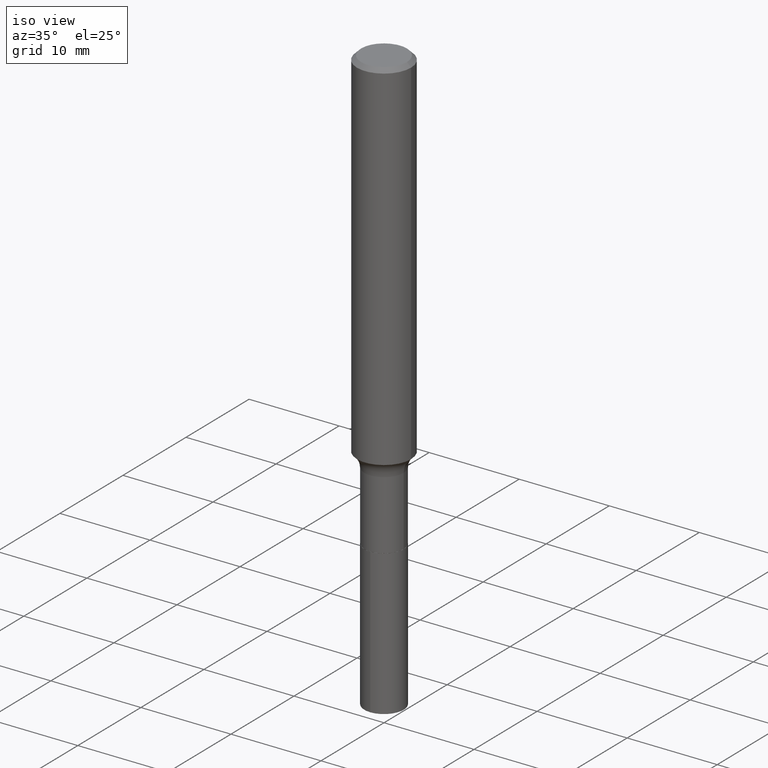
[diagram: clean part render]
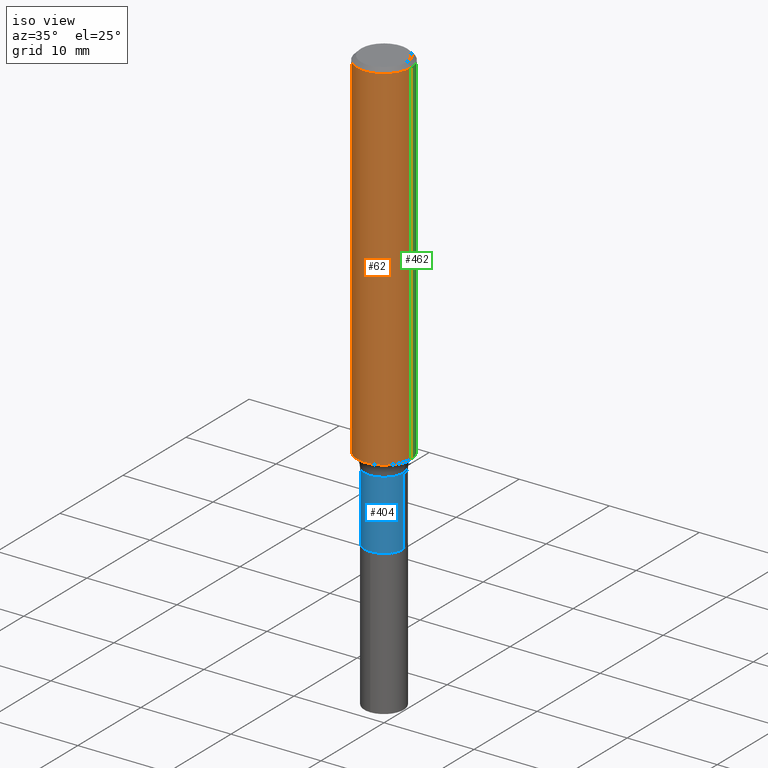
[diagram: same view with three faces highlighted in distinct colors, each labeled with its STEP entity id]
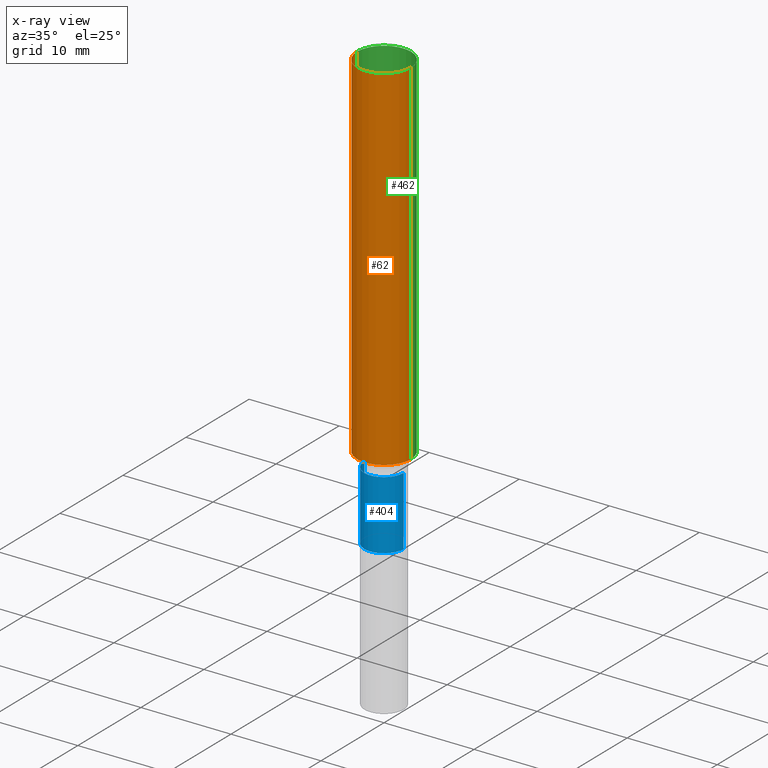
[diagram: x-ray of the same camera — body ghosted, the three highlighted faces saturated]
A machine part, iso view with three faces highlighted in distinct colors.
The next image is the same camera in x-ray (body ghosted, the three faces saturated) — at least one of them is partly hidden behind the body in this view.
Their STEP definitions:

[orange] entity #62 — the highlighted cylindrical surface (edge-blend (fillet) strip) has radius 2.9997 mm, axis along (-0, 0, 1).
#2 = DIRECTION ( 'NONE',  ( 1.000000000000000000, -6.982962677686266711E-15, 0.000000000000000000 ) ) ;
#19 = EDGE_CURVE ( 'NONE', #136, #291, #482, .T. ) ;
#32 = CYLINDRICAL_SURFACE ( 'NONE', #325, 0.1181000000000000799 ) ;
#38 = CARTESIAN_POINT ( 'NONE',  ( 4.332147990156996744E-31, -6.185159191760670395E-17, -0.01771500000000010913 ) ) ;
#40 = DIRECTION ( 'NONE',  ( -2.445468806185136597E-29, 3.491481338843145583E-15, 1.000000000000000000 ) ) ;
#44 = CARTESIAN_POINT ( 'NONE',  ( -0.1181000000000000799, 8.391509709326788873E-16, -5.809262341591047988E-30 ) ) ;
#62 = ADVANCED_FACE ( 'NONE', ( #373 ), #32, .T. ) ;
#64 = VERTEX_POINT ( 'NONE', #415 ) ;
#65 = ORIENTED_EDGE ( 'NONE', *, *, #152, .F. ) ;
#124 = CARTESIAN_POINT ( 'NONE',  ( 0.1181000000000002048, -6.287454960939812530E-15, -1.564598672755638020 ) ) ;
#136 = VERTEX_POINT ( 'NONE', #234 ) ;
#137 = CIRCLE ( 'NONE', #413, 0.1180999999999999966 ) ;
#141 = ORIENTED_EDGE ( 'NONE', *, *, #221, .F. ) ;
#152 = EDGE_CURVE ( 'NONE', #64, #251, #137, .T. ) ;
#153 = LINE ( 'NONE', #408, #177 ) ;
#172 = CARTESIAN_POINT ( 'NONE',  ( 0.1180999999999999966, -8.865394841523547570E-16, -0.01771500000000010913 ) ) ;
#177 = VECTOR ( 'NONE', #299, 39.37007874015748143 ) ;
#201 = DIRECTION ( 'NONE',  ( -2.445468806185136877E-29, 3.491481338843145188E-15, 1.000000000000000000 ) ) ;
#221 = EDGE_CURVE ( 'NONE', #136, #64, #384, .T. ) ;
#234 = CARTESIAN_POINT ( 'NONE',  ( -0.1181000000000002048, -4.623616097772383704E-15, -1.564598672755638020 ) ) ;
#235 = DIRECTION ( 'NONE',  ( 1.000000000000000000, -6.982962677686266711E-15, 4.876176775795936353E-29 ) ) ;
#251 = VERTEX_POINT ( 'NONE', #172 ) ;
#260 = EDGE_LOOP ( 'NONE', ( #141, #435, #367, #65 ) ) ;
#291 = VERTEX_POINT ( 'NONE', #124 ) ;
#299 = DIRECTION ( 'NONE',  ( -2.445468806185136877E-29, 3.491481338843145188E-15, 1.000000000000000000 ) ) ;
#325 = AXIS2_PLACEMENT_3D ( 'NONE', #379, #40, #235 ) ;
#329 = DIRECTION ( 'NONE',  ( 1.000000000000000000, -6.982962677686270655E-15, 0.000000000000000000 ) ) ;
#335 = DIRECTION ( 'NONE',  ( -2.445468806185136597E-29, 3.491481338843145583E-15, 1.000000000000000000 ) ) ;
#342 = DIRECTION ( 'NONE',  ( -2.445468806185136597E-29, 3.491481338843145583E-15, 1.000000000000000000 ) ) ;
#367 = ORIENTED_EDGE ( 'NONE', *, *, #420, .T. ) ;
#368 = VECTOR ( 'NONE', #201, 39.37007874015748143 ) ;
#373 = FACE_OUTER_BOUND ( 'NONE', #260, .T. ) ;
#379 = CARTESIAN_POINT ( 'NONE',  ( 0.000000000000000000, 0.000000000000000000, 0.000000000000000000 ) ) ;
#384 = LINE ( 'NONE', #44, #368 ) ;
#403 = AXIS2_PLACEMENT_3D ( 'NONE', #487, #335, #329 ) ;
#408 = CARTESIAN_POINT ( 'NONE',  ( 0.1181000000000000799, -8.246878922347486570E-16, 5.758764772215004644E-30 ) ) ;
#413 = AXIS2_PLACEMENT_3D ( 'NONE', #38, #342, #2 ) ;
#415 = CARTESIAN_POINT ( 'NONE',  ( -0.1180999999999999966, -1.923158359378655458E-15, -0.01771500000000010913 ) ) ;
#420 = EDGE_CURVE ( 'NONE', #291, #251, #153, .T. ) ;
#435 = ORIENTED_EDGE ( 'NONE', *, *, #19, .T. ) ;
#482 = CIRCLE ( 'NONE', #403, 0.1181000000000001632 ) ;
#487 = CARTESIAN_POINT ( 'NONE',  ( 3.826177248422579453E-29, -5.462767068705062690E-15, -1.564598672755638020 ) ) ;

[blue] entity #404 — the highlighted cylindrical surface (edge-blend (fillet) strip) has radius 2.1831 mm, axis along (-0, 0, 1).
#11 = CARTESIAN_POINT ( 'NONE',  ( 0.08594999999999998475, -7.333856552240024427E-15, -1.928600000000000092 ) ) ;
#33 = FACE_OUTER_BOUND ( 'NONE', #266, .T. ) ;
#37 = AXIS2_PLACEMENT_3D ( 'NONE', #339, #224, #344 ) ;
#47 = EDGE_CURVE ( 'NONE', #173, #322, #481, .T. ) ;
#56 = VERTEX_POINT ( 'NONE', #225 ) ;
#76 = EDGE_CURVE ( 'NONE', #284, #56, #421, .T. ) ;
#82 = DIRECTION ( 'NONE',  ( -2.445468806185136877E-29, 3.491481338843145188E-15, 1.000000000000000000 ) ) ;
#96 = VECTOR ( 'NONE', #82, 39.37007874015748143 ) ;
#120 = VECTOR ( 'NONE', #142, 39.37007874015748143 ) ;
#142 = DIRECTION ( 'NONE',  ( -2.445468806185136877E-29, 3.491481338843145188E-15, 1.000000000000000000 ) ) ;
#154 = DIRECTION ( 'NONE',  ( 1.000000000000000000, -6.982962677686264344E-15, 0.000000000000000000 ) ) ;
#157 = CARTESIAN_POINT ( 'NONE',  ( -0.08594999999999998475, -5.597666061278133758E-15, -1.928600000000000092 ) ) ;
#162 = DIRECTION ( 'NONE',  ( -2.445468806185136597E-29, 3.491481338843145583E-15, 1.000000000000000000 ) ) ;
#163 = EDGE_CURVE ( 'NONE', #322, #56, #208, .T. ) ;
#173 = VERTEX_POINT ( 'NONE', #157 ) ;
#174 = EDGE_CURVE ( 'NONE', #173, #284, #249, .T. ) ;
#184 = AXIS2_PLACEMENT_3D ( 'NONE', #459, #347, #455 ) ;
#187 = CARTESIAN_POINT ( 'NONE',  ( -0.08594999999999997087, 6.107114813858059028E-16, -4.227824710074090189E-30 ) ) ;
#198 = CARTESIAN_POINT ( 'NONE',  ( 3.980489575827546304E-29, -5.683084175234986754E-15, -1.627699999999999703 ) ) ;
#208 = CIRCLE ( 'NONE', #467, 0.08594999999999995699 ) ;
#212 = ORIENTED_EDGE ( 'NONE', *, *, #47, .F. ) ;
#224 = DIRECTION ( 'NONE',  ( -2.445468806185136597E-29, 3.491481338843145583E-15, 1.000000000000000000 ) ) ;
#225 = CARTESIAN_POINT ( 'NONE',  ( 0.08594999999999995699, -6.283269817382120980E-15, -1.627699999999999703 ) ) ;
#233 = CYLINDRICAL_SURFACE ( 'NONE', #37, 0.08594999999999997087 ) ;
#249 = CIRCLE ( 'NONE', #184, 0.08594999999999998475 ) ;
#262 = ORIENTED_EDGE ( 'NONE', *, *, #163, .F. ) ;
#266 = EDGE_LOOP ( 'NONE', ( #212, #333, #285, #262 ) ) ;
#284 = VERTEX_POINT ( 'NONE', #11 ) ;
#285 = ORIENTED_EDGE ( 'NONE', *, *, #76, .T. ) ;
#322 = VERTEX_POINT ( 'NONE', #453 ) ;
#333 = ORIENTED_EDGE ( 'NONE', *, *, #174, .T. ) ;
#339 = CARTESIAN_POINT ( 'NONE',  ( 0.000000000000000000, 0.000000000000000000, 0.000000000000000000 ) ) ;
#344 = DIRECTION ( 'NONE',  ( 1.000000000000000000, -6.982962677686266711E-15, 4.876176775795936353E-29 ) ) ;
#347 = DIRECTION ( 'NONE',  ( -2.445468806185136597E-29, 3.491481338843145583E-15, 1.000000000000000000 ) ) ;
#404 = ADVANCED_FACE ( 'NONE', ( #33 ), #233, .T. ) ;
#421 = LINE ( 'NONE', #452, #96 ) ;
#452 = CARTESIAN_POINT ( 'NONE',  ( 0.08594999999999997087, -6.001856421471344234E-16, 4.191073938796605839E-30 ) ) ;
#453 = CARTESIAN_POINT ( 'NONE',  ( -0.08594999999999995699, -5.597666061278133758E-15, -1.627699999999999703 ) ) ;
#455 = DIRECTION ( 'NONE',  ( 1.000000000000000000, -6.982962677686261977E-15, 0.000000000000000000 ) ) ;
#459 = CARTESIAN_POINT ( 'NONE',  ( 4.716331139608654438E-29, -6.733670910092890989E-15, -1.928600000000000092 ) ) ;
#467 = AXIS2_PLACEMENT_3D ( 'NONE', #198, #162, #154 ) ;
#481 = LINE ( 'NONE', #187, #120 ) ;

[green] entity #462 — the highlighted cylindrical surface (edge-blend (fillet) strip) has radius 2.9997 mm, axis along (-0, 0, 1).
#17 = EDGE_LOOP ( 'NONE', ( #358, #26, #220, #400 ) ) ;
#26 = ORIENTED_EDGE ( 'NONE', *, *, #221, .T. ) ;
#44 = CARTESIAN_POINT ( 'NONE',  ( -0.1181000000000000799, 8.391509709326788873E-16, -5.809262341591047988E-30 ) ) ;
#64 = VERTEX_POINT ( 'NONE', #415 ) ;
#70 = DIRECTION ( 'NONE',  ( -2.445468806185136597E-29, 3.491481338843145583E-15, 1.000000000000000000 ) ) ;
#77 = CARTESIAN_POINT ( 'NONE',  ( 3.826177248422579453E-29, -5.462767068705062690E-15, -1.564598672755638020 ) ) ;
#84 = DIRECTION ( 'NONE',  ( 1.000000000000000000, -6.982962677686266711E-15, 0.000000000000000000 ) ) ;
#99 = CIRCLE ( 'NONE', #392, 0.1180999999999999966 ) ;
#124 = CARTESIAN_POINT ( 'NONE',  ( 0.1181000000000002048, -6.287454960939812530E-15, -1.564598672755638020 ) ) ;
#136 = VERTEX_POINT ( 'NONE', #234 ) ;
#146 = CYLINDRICAL_SURFACE ( 'NONE', #200, 0.1181000000000000799 ) ;
#153 = LINE ( 'NONE', #408, #177 ) ;
#172 = CARTESIAN_POINT ( 'NONE',  ( 0.1180999999999999966, -8.865394841523547570E-16, -0.01771500000000010913 ) ) ;
#177 = VECTOR ( 'NONE', #299, 39.37007874015748143 ) ;
#200 = AXIS2_PLACEMENT_3D ( 'NONE', #310, #70, #271 ) ;
#201 = DIRECTION ( 'NONE',  ( -2.445468806185136877E-29, 3.491481338843145188E-15, 1.000000000000000000 ) ) ;
#220 = ORIENTED_EDGE ( 'NONE', *, *, #290, .F. ) ;
#221 = EDGE_CURVE ( 'NONE', #136, #64, #384, .T. ) ;
#234 = CARTESIAN_POINT ( 'NONE',  ( -0.1181000000000002048, -4.623616097772383704E-15, -1.564598672755638020 ) ) ;
#251 = VERTEX_POINT ( 'NONE', #172 ) ;
#271 = DIRECTION ( 'NONE',  ( 1.000000000000000000, -6.982962677686266711E-15, 4.876176775795936353E-29 ) ) ;
#290 = EDGE_CURVE ( 'NONE', #251, #64, #99, .T. ) ;
#291 = VERTEX_POINT ( 'NONE', #124 ) ;
#299 = DIRECTION ( 'NONE',  ( -2.445468806185136877E-29, 3.491481338843145188E-15, 1.000000000000000000 ) ) ;
#310 = CARTESIAN_POINT ( 'NONE',  ( 0.000000000000000000, 0.000000000000000000, 0.000000000000000000 ) ) ;
#358 = ORIENTED_EDGE ( 'NONE', *, *, #471, .T. ) ;
#368 = VECTOR ( 'NONE', #201, 39.37007874015748143 ) ;
#376 = CIRCLE ( 'NONE', #448, 0.1181000000000001632 ) ;
#384 = LINE ( 'NONE', #44, #368 ) ;
#392 = AXIS2_PLACEMENT_3D ( 'NONE', #425, #466, #84 ) ;
#400 = ORIENTED_EDGE ( 'NONE', *, *, #420, .F. ) ;
#408 = CARTESIAN_POINT ( 'NONE',  ( 0.1181000000000000799, -8.246878922347486570E-16, 5.758764772215004644E-30 ) ) ;
#410 = FACE_OUTER_BOUND ( 'NONE', #17, .T. ) ;
#415 = CARTESIAN_POINT ( 'NONE',  ( -0.1180999999999999966, -1.923158359378655458E-15, -0.01771500000000010913 ) ) ;
#416 = DIRECTION ( 'NONE',  ( -2.445468806185136597E-29, 3.491481338843145583E-15, 1.000000000000000000 ) ) ;
#420 = EDGE_CURVE ( 'NONE', #291, #251, #153, .T. ) ;
#425 = CARTESIAN_POINT ( 'NONE',  ( 4.332147990156996744E-31, -6.185159191760670395E-17, -0.01771500000000010913 ) ) ;
#448 = AXIS2_PLACEMENT_3D ( 'NONE', #77, #416, #460 ) ;
#460 = DIRECTION ( 'NONE',  ( 1.000000000000000000, -6.982962677686270655E-15, 0.000000000000000000 ) ) ;
#462 = ADVANCED_FACE ( 'NONE', ( #410 ), #146, .T. ) ;
#466 = DIRECTION ( 'NONE',  ( -2.445468806185136597E-29, 3.491481338843145583E-15, 1.000000000000000000 ) ) ;
#471 = EDGE_CURVE ( 'NONE', #291, #136, #376, .T. ) ;